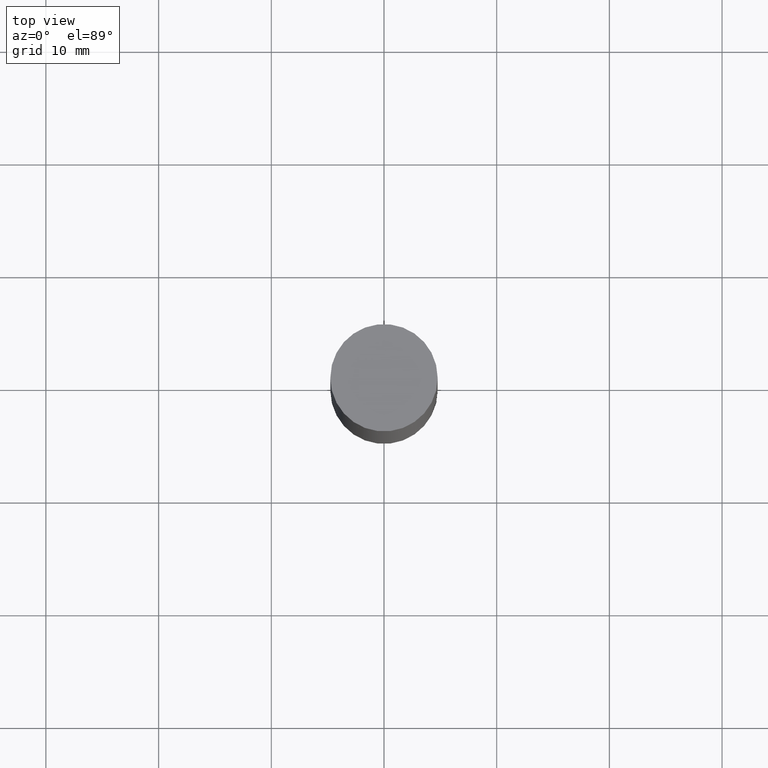
[diagram: clean part render]
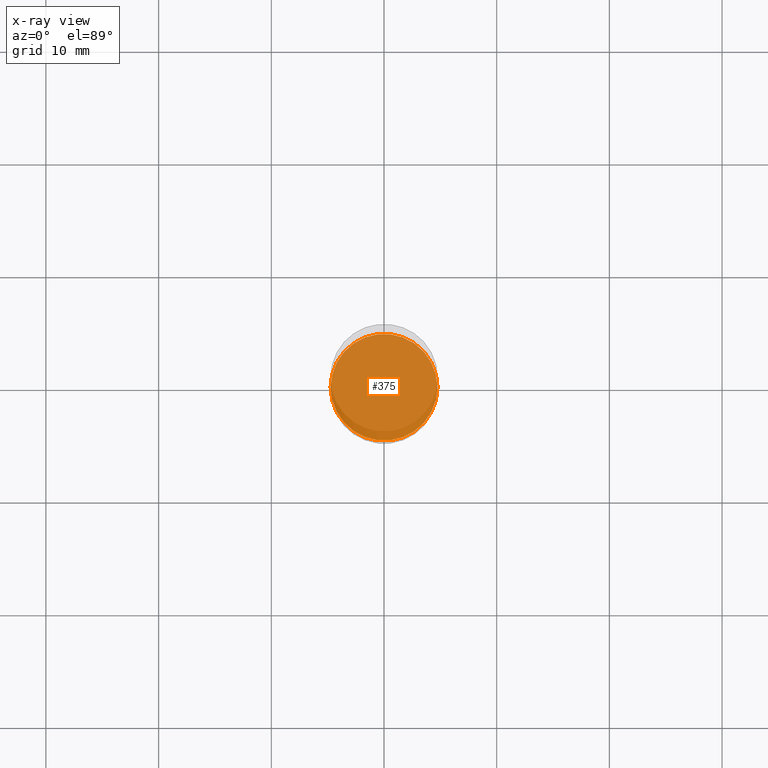
[diagram: x-ray — body ghosted, one internal face saturated and labeled with its STEP entity id]
A machine part, top view, then the same camera in x-ray: the body is ghosted and one INTERNAL B-rep face — a face not visible from any outside direction — is saturated and labeled: STEP entity #375.
In plain terms, the highlighted planar face has unit normal (-0, 0, 1).
Its self-contained STEP definition (entity closure, byte-faithful):
#21 = CARTESIAN_POINT ( 'NONE',  ( 4.739318546386794397E-29, -6.766490834678016045E-15, -1.937999999999999945 ) ) ;
#108 = EDGE_CURVE ( 'NONE', #126, #537, #494, .T. ) ;
#110 = AXIS2_PLACEMENT_3D ( 'NONE', #626, #577, #255 ) ;
#126 = VERTEX_POINT ( 'NONE', #246 ) ;
#180 = CARTESIAN_POINT ( 'NONE',  ( 0.1864999999999999714, -8.068813374066505039E-15, -1.937999999999999945 ) ) ;
#197 = AXIS2_PLACEMENT_3D ( 'NONE', #293, #283, #449 ) ;
#246 = CARTESIAN_POINT ( 'NONE',  ( -0.1864999999999999714, -5.436030178137207592E-15, -1.937999999999999945 ) ) ;
#255 = DIRECTION ( 'NONE',  ( 1.000000000000000000, -6.982962677686265922E-15, 4.876176775795935793E-29 ) ) ;
#266 = PLANE ( 'NONE',  #110 ) ;
#283 = DIRECTION ( 'NONE',  ( -2.445468806185136597E-29, 3.491481338843145583E-15, 1.000000000000000000 ) ) ;
#292 = DIRECTION ( 'NONE',  ( 1.000000000000000000, -6.982962677686269077E-15, 0.000000000000000000 ) ) ;
#293 = CARTESIAN_POINT ( 'NONE',  ( 4.739318546386794397E-29, -6.766490834678016045E-15, -1.937999999999999945 ) ) ;
#366 = FACE_OUTER_BOUND ( 'NONE', #645, .T. ) ;
#375 = ADVANCED_FACE ( 'NONE', ( #366 ), #266, .F. ) ;
#408 = CIRCLE ( 'NONE', #575, 0.1864999999999999714 ) ;
#425 = ORIENTED_EDGE ( 'NONE', *, *, #108, .F. ) ;
#440 = DIRECTION ( 'NONE',  ( -2.445468806185136597E-29, 3.491481338843145583E-15, 1.000000000000000000 ) ) ;
#449 = DIRECTION ( 'NONE',  ( 1.000000000000000000, -6.982962677686269077E-15, 0.000000000000000000 ) ) ;
#470 = ORIENTED_EDGE ( 'NONE', *, *, #527, .F. ) ;
#494 = CIRCLE ( 'NONE', #197, 0.1864999999999999714 ) ;
#527 = EDGE_CURVE ( 'NONE', #537, #126, #408, .T. ) ;
#537 = VERTEX_POINT ( 'NONE', #180 ) ;
#575 = AXIS2_PLACEMENT_3D ( 'NONE', #21, #440, #292 ) ;
#577 = DIRECTION ( 'NONE',  ( -2.438088387897960049E-29, 3.491481338843145188E-15, 1.000000000000000000 ) ) ;
#626 = CARTESIAN_POINT ( 'NONE',  ( 4.739318546386794397E-29, -6.766490834678016045E-15, -1.937999999999999945 ) ) ;
#645 = EDGE_LOOP ( 'NONE', ( #470, #425 ) ) ;